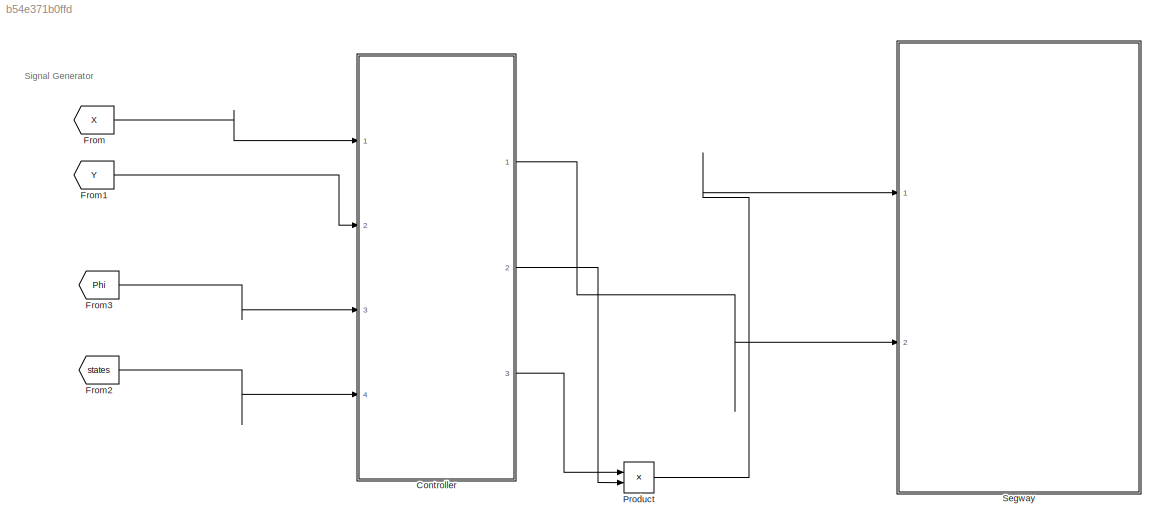
MODEL slx_b54e371b0ffd
KIND model
CONFIG AbsTol = auto
CONFIG EnableMultiTasking = on
CONFIG FixedStep = auto
CONFIG MaxStep = auto
CONFIG MinStep = auto
CONFIG RelTol = 1e-3
CONFIG SampleTimeConstraint = Unconstrained
CONFIG Solver = FixedStepAuto
CONFIG SolverName = FixedStepAuto
CONFIG StartTime = 0.0
CONFIG StopTime = 10.0
WORKSPACE source: MAT-file member
WORKSPACE MCOS: class17 (value not decoded)
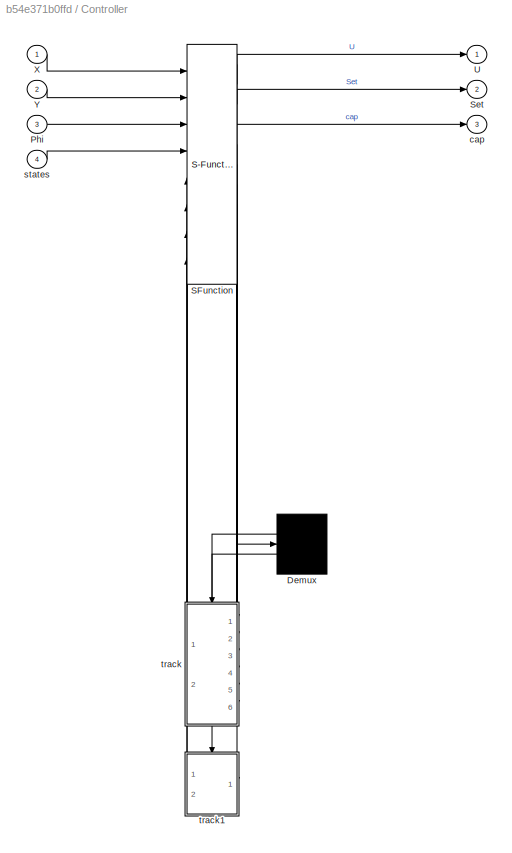
BLOCK [SubSystem] Controller
  ErrorFcn = Stateflow.Translate.translate
  PermitHierarchicalResolution = ExplicitOnly
  Ports = [4, 3]
  RequestExecContextInheritance = off
  SFBlockType = Chart
  TreatAsAtomicUnit = on
  Variant = off
BLOCK [Demux] Controller/ Demux 
  Outputs = 2
  Ports = [1, 2]
BLOCK [S-Function] Controller/ SFunction 
  EnableBusSupport = on
  FunctionName = sf_sfun
  Parameters = waypoints
  PortCounts = [8 11]
  Ports = [8, 11]
  SFcnIsStateOwnerBlock = off
  SFunctionDeploymentMode = off
  Tag = Stateflow S-Function Hybrid_automata 3
BLOCK [Inport] Controller/Phi
  IconDisplay = Port number
  Port = 3
BLOCK [Outport] Controller/Set
  IconDisplay = Port number
  Port = 2
BLOCK [Outport] Controller/U
  IconDisplay = Port number
BLOCK [Inport] Controller/X
  IconDisplay = Port number
BLOCK [Inport] Controller/Y
  IconDisplay = Port number
  Port = 2
BLOCK [Outport] Controller/cap
  IconDisplay = Port number
  Port = 3
BLOCK [Inport] Controller/states
  IconDisplay = Port number
  Port = 4
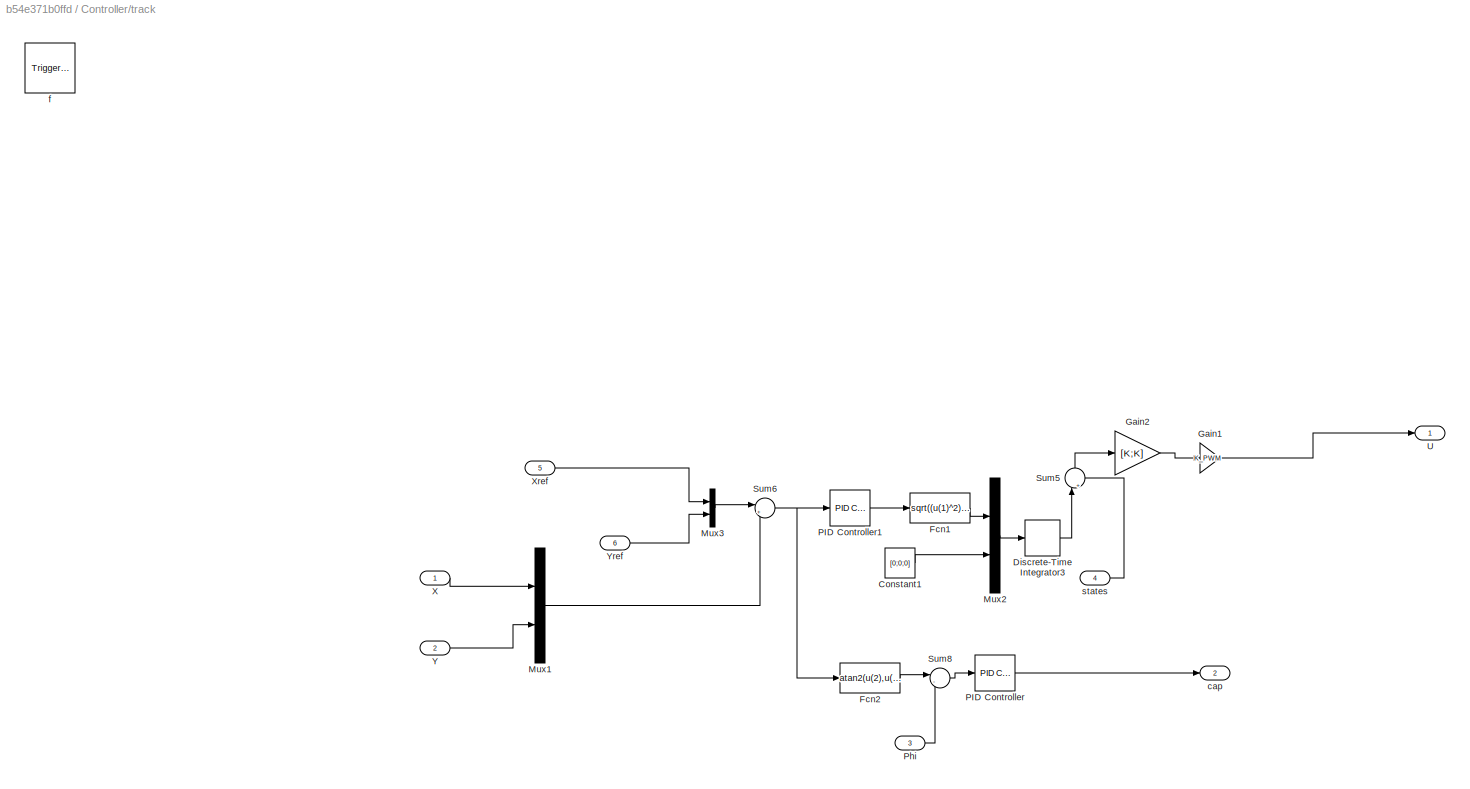
BLOCK [SubSystem] Controller/track
  Ports = [6, 2, 0, 1]
  PreDeleteFcn = Stateflow.SLINSF.SimulinkMan.removePreDeleteFcn
  RequestExecContextInheritance = off
  UndoDeleteFcn = Stateflow.SLINSF.SimulinkMan.restorePreDeleteFcn
  Variant = off
BLOCK [Constant] Controller/track/Constant1
  Value = [0;0;0]
BLOCK [DiscreteIntegrator] Controller/track/Discrete-Time Integrator3
  ICPrevOutput = DiscIntNeverNeededParam
  ICPrevScaledInput = DiscIntNeverNeededParam
  Ports = [1, 1]
  SampleTime = -1
BLOCK [Fcn] Controller/track/Fcn1
  Expr = sqrt((u(1)^2)+(u(2)^2))
BLOCK [Fcn] Controller/track/Fcn2
  Expr = atan2(u(2),u(1))
BLOCK [Gain] Controller/track/Gain1
  Gain = K_PWM
  OutDataTypeStr = Inherit: Inherit via internal rule
  ParamDataTypeStr = Inherit: Inherit via internal rule
  SaturateOnIntegerOverflow = off
BLOCK [Gain] Controller/track/Gain2
  Gain = [K;K]
  Multiplication = Matrix(K*u)
  OutDataTypeStr = Inherit: Inherit via internal rule
  ParamDataTypeStr = Inherit: Inherit via internal rule
  SaturateOnIntegerOverflow = off
BLOCK [Mux] Controller/track/Mux1
  DisplayOption = bar
  Inputs = 2
  Ports = [2, 1]
BLOCK [Mux] Controller/track/Mux2
  DisplayOption = bar
  Inputs = 2
  Ports = [2, 1]
BLOCK [Mux] Controller/track/Mux3
  DisplayOption = bar
  Inputs = 2
  Ports = [2, 1]
BLOCK [Reference] Controller/track/PID Controller  REF=simulink/Continuous/PID Controller
  Ports = [1, 1]
  SourceBlock = simulink/Continuous/PID Controller
  SourceProductBaseCode = SL
  SourceProductName = Simulink
  SourceType = PID 1dof
BLOCK [Reference] Controller/track/PID Controller1  REF=simulink/Continuous/PID Controller
  Ports = [1, 1]
  SourceBlock = simulink/Continuous/PID Controller
  SourceProductBaseCode = SL
  SourceProductName = Simulink
  SourceType = PID 1dof
BLOCK [Inport] Controller/track/Phi
  IconDisplay = Port number
  OutDataTypeStr = double
  Port = 3
  PortDimensions = 1
  SignalType = real
  VarSizeSig = No
BLOCK [Sum] Controller/track/Sum5
  IconShape = round
  InputSameDT = off
  Inputs = |+-
  OutDataTypeStr = Inherit: Inherit via internal rule
  Ports = [2, 1]
  SaturateOnIntegerOverflow = off
BLOCK [Sum] Controller/track/Sum6
  IconShape = round
  InputSameDT = off
  Inputs = |+-
  OutDataTypeStr = Inherit: Inherit via internal rule
  Ports = [2, 1]
  SaturateOnIntegerOverflow = off
BLOCK [Sum] Controller/track/Sum8
  IconShape = round
  InputSameDT = off
  Inputs = |-+
  OutDataTypeStr = Inherit: Inherit via internal rule
  Ports = [2, 1]
  SaturateOnIntegerOverflow = off
BLOCK [Outport] Controller/track/U
  IconDisplay = Port number
  InitialOutput = [0;0]
BLOCK [Inport] Controller/track/X
  IconDisplay = Port number
  OutDataTypeStr = double
  PortDimensions = 1
  SignalType = real
  VarSizeSig = No
BLOCK [Inport] Controller/track/Xref
  IconDisplay = Port number
  OutDataTypeStr = double
  Port = 5
  PortDimensions = 1
  SignalType = real
  VarSizeSig = No
BLOCK [Inport] Controller/track/Y
  IconDisplay = Port number
  OutDataTypeStr = double
  Port = 2
  PortDimensions = 1
  SignalType = real
  VarSizeSig = No
BLOCK [Inport] Controller/track/Yref
  IconDisplay = Port number
  OutDataTypeStr = double
  Port = 6
  PortDimensions = 1
  SignalType = real
  VarSizeSig = No
BLOCK [Outport] Controller/track/cap
  IconDisplay = Port number
  InitialOutput = [0]
  Port = 2
BLOCK [TriggerPort] Controller/track/f
  CopyFcn = Stateflow.SLINSF.SimulinkMan.removeBlockPreDeleteFcn
  Ports = []
  PreDeleteFcn = Stateflow.SLINSF.SimulinkMan.unsafePredeleteFcn
  StatesWhenEnabling = held
  TriggerType = function-call
  VariantControl = (inherit)
BLOCK [Inport] Controller/track/states
  IconDisplay = Port number
  OutDataTypeStr = double
  OutMax = [4]
  OutMin = [4]
  Port = 4
  PortDimensions = 4
  SignalType = real
  VarSizeSig = No
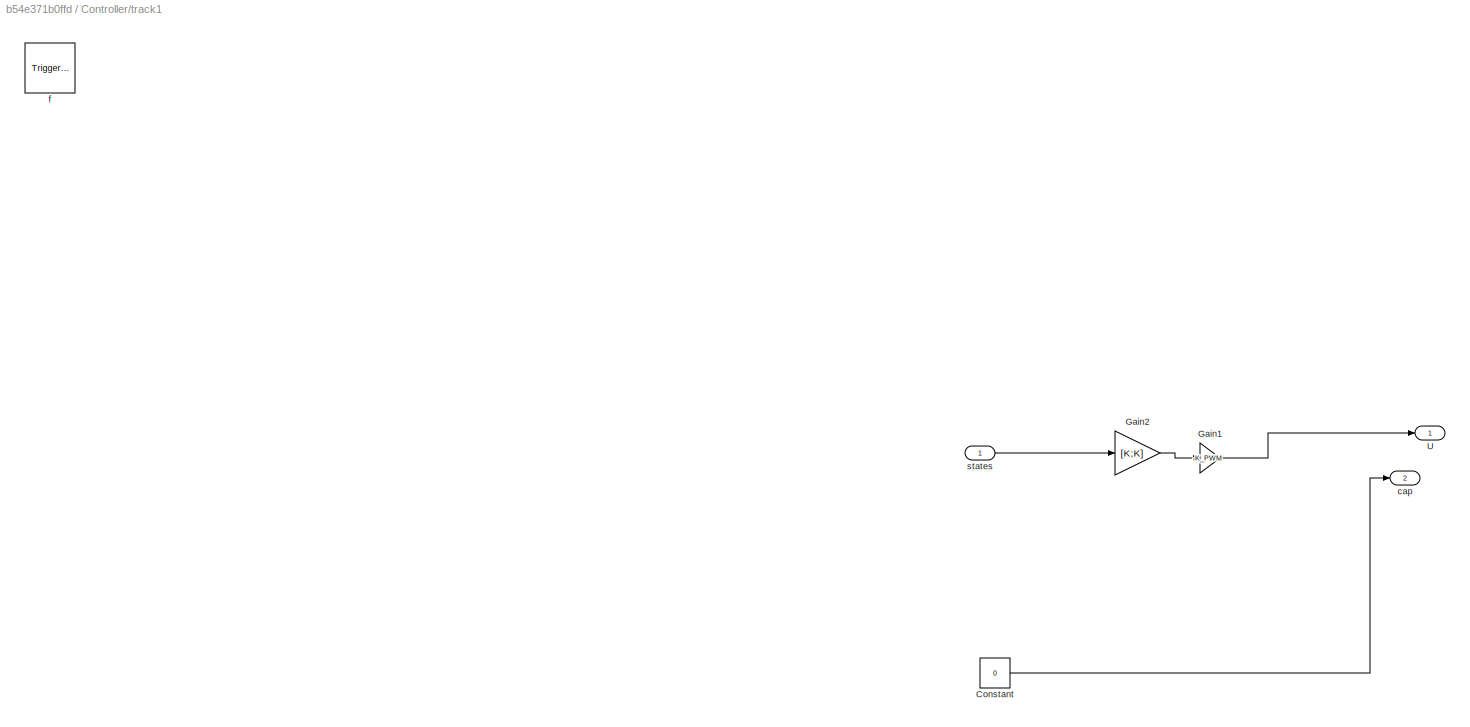
BLOCK [SubSystem] Controller/track1
  Ports = [1, 2, 0, 1]
  PreDeleteFcn = Stateflow.SLINSF.SimulinkMan.removePreDeleteFcn
  RequestExecContextInheritance = off
  UndoDeleteFcn = Stateflow.SLINSF.SimulinkMan.restorePreDeleteFcn
  Variant = off
BLOCK [Constant] Controller/track1/Constant
  Value = 0
BLOCK [Gain] Controller/track1/Gain1
  Gain = -K_PWM
  OutDataTypeStr = Inherit: Inherit via internal rule
  ParamDataTypeStr = Inherit: Inherit via internal rule
  SaturateOnIntegerOverflow = off
BLOCK [Gain] Controller/track1/Gain2
  Gain = [K;K]
  Multiplication = Matrix(K*u)
  OutDataTypeStr = Inherit: Inherit via internal rule
  ParamDataTypeStr = Inherit: Inherit via internal rule
  SaturateOnIntegerOverflow = off
BLOCK [Outport] Controller/track1/U
  IconDisplay = Port number
  InitialOutput = [0;0]
BLOCK [Outport] Controller/track1/cap
  IconDisplay = Port number
  InitialOutput = [0]
  Port = 2
BLOCK [TriggerPort] Controller/track1/f
  CopyFcn = Stateflow.SLINSF.SimulinkMan.removeBlockPreDeleteFcn
  Ports = []
  PreDeleteFcn = Stateflow.SLINSF.SimulinkMan.unsafePredeleteFcn
  StatesWhenEnabling = held
  TriggerType = function-call
  VariantControl = (inherit)
BLOCK [Inport] Controller/track1/states
  IconDisplay = Port number
  OutDataTypeStr = double
  OutMax = [4]
  OutMin = [4]
  PortDimensions = 4
  SignalType = real
  VarSizeSig = No
BLOCK [From] From
  GotoTag = X
  IconDisplay = Tag and signal name
  TagVisibility = global
BLOCK [From] From1
  GotoTag = Y
  TagVisibility = global
BLOCK [From] From2
  GotoTag = states
  IconDisplay = Tag and signal name
  TagVisibility = global
BLOCK [From] From3
  GotoTag = Phi
  TagVisibility = global
BLOCK [Product] Product
  InputSameDT = off
  OutDataTypeStr = Inherit: Inherit via internal rule
  Ports = [2, 1]
  RndMeth = Floor
  SaturateOnIntegerOverflow = off
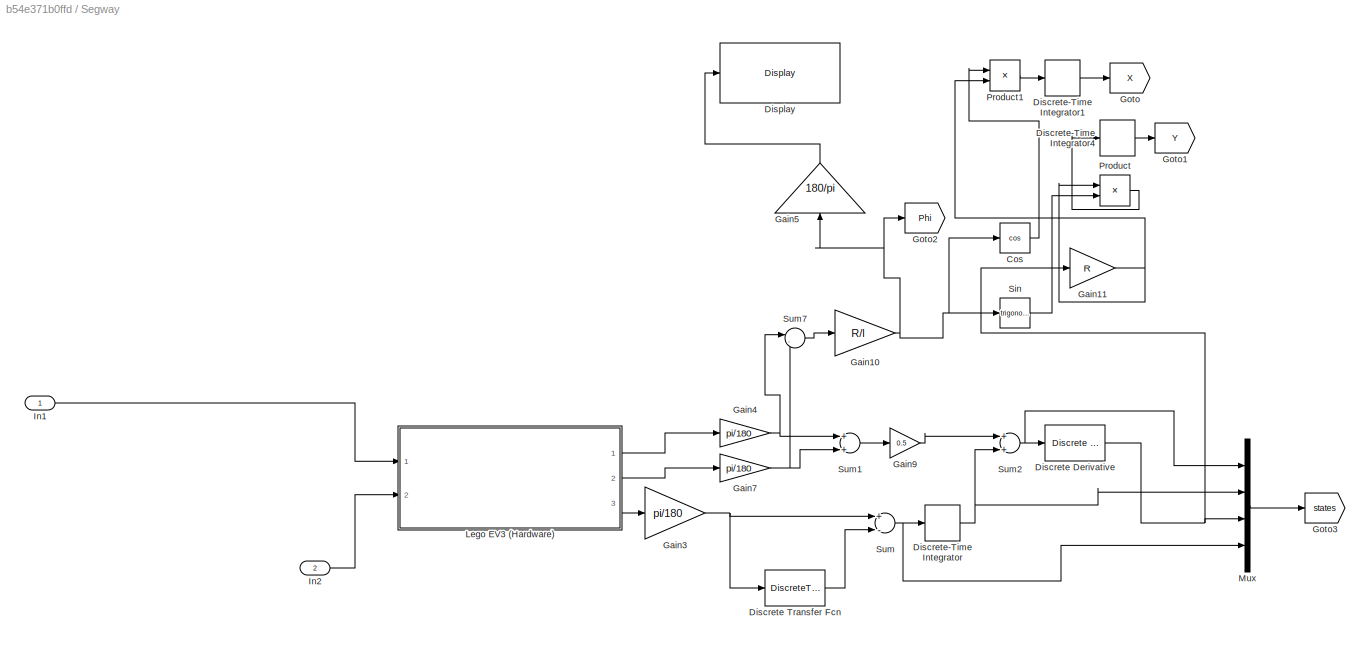
BLOCK [SubSystem] Segway 
  Ports = [2]
  RequestExecContextInheritance = off
  Variant = off
BLOCK [Trigonometry] Segway /Cos
  Operator = cos
  Ports = [1, 1]
BLOCK [Reference] Segway /Discrete Derivative  REF=simulink/Discrete/Discrete Derivative
  Ports = [1, 1]
  SourceBlock = simulink/Discrete/Discrete Derivative
  SourceProductBaseCode = SL
  SourceProductName = Simulink
  SourceType = Discrete Derivative
BLOCK [DiscreteTransferFcn] Segway /Discrete Transfer Fcn
  Denominator = [1 -0.999]
  InputPortMap = u0
  Numerator = [0.001 0]
  Ports = [1, 1]
  SampleTime = Ts
BLOCK [DiscreteIntegrator] Segway /Discrete-Time Integrator
  ICPrevOutput = DiscIntNeverNeededParam
  ICPrevScaledInput = DiscIntNeverNeededParam
  InitialConditionSetting = State (most efficient)
  Ports = [1, 1]
  SampleTime = Ts
BLOCK [DiscreteIntegrator] Segway /Discrete-Time Integrator1
  ICPrevOutput = DiscIntNeverNeededParam
  ICPrevScaledInput = DiscIntNeverNeededParam
  InitialConditionSetting = State (most efficient)
  Ports = [1, 1]
  SampleTime = Ts
BLOCK [DiscreteIntegrator] Segway /Discrete-Time Integrator4
  ICPrevOutput = DiscIntNeverNeededParam
  ICPrevScaledInput = DiscIntNeverNeededParam
  InitialConditionSetting = State (most efficient)
  Ports = [1, 1]
  SampleTime = Ts
BLOCK [Reference] Segway /Display  REF=legoev3lib/Display
  Ports = [1]
  SourceBlock = legoev3lib/Display
  SourceProductBaseCode = LEGOEV3
  SourceProductName = Simulink Support Package for LEGO MINDSTORMS EV3 Hardware
  SourceType = LEGO MINDSTORMS EV3 Display
BLOCK [Gain] Segway /Gain10
  Gain = R/l
  OutDataTypeStr = Inherit: Inherit via internal rule
  ParamDataTypeStr = Inherit: Inherit via internal rule
  SaturateOnIntegerOverflow = off
BLOCK [Gain] Segway /Gain11
  Gain = R
  OutDataTypeStr = Inherit: Inherit via internal rule
  ParamDataTypeStr = Inherit: Inherit via internal rule
  SaturateOnIntegerOverflow = off
BLOCK [Gain] Segway /Gain3
  Gain = pi/180
  OutDataTypeStr = Inherit: Inherit via internal rule
  ParamDataTypeStr = Inherit: Inherit via internal rule
  SaturateOnIntegerOverflow = off
BLOCK [Gain] Segway /Gain4
  Gain = pi/180
  OutDataTypeStr = Inherit: Inherit via internal rule
  ParamDataTypeStr = Inherit: Inherit via internal rule
  SaturateOnIntegerOverflow = off
BLOCK [Gain] Segway /Gain5
  Gain = 180/pi
  OutDataTypeStr = Inherit: Inherit via internal rule
  ParamDataTypeStr = Inherit: Inherit via internal rule
  SaturateOnIntegerOverflow = off
BLOCK [Gain] Segway /Gain7
  Gain = pi/180
  OutDataTypeStr = Inherit: Inherit via internal rule
  ParamDataTypeStr = Inherit: Inherit via internal rule
  SaturateOnIntegerOverflow = off
BLOCK [Gain] Segway /Gain9
  Gain = 0.5
  OutDataTypeStr = Inherit: Inherit via internal rule
  ParamDataTypeStr = Inherit: Inherit via internal rule
  SaturateOnIntegerOverflow = off
BLOCK [Goto] Segway /Goto
  GotoTag = X
  TagVisibility = global
BLOCK [Goto] Segway /Goto1
  GotoTag = Y
  TagVisibility = global
BLOCK [Goto] Segway /Goto2
  GotoTag = Phi
  TagVisibility = global
BLOCK [Goto] Segway /Goto3
  GotoTag = states
  IconDisplay = Tag and signal name
  TagVisibility = global
BLOCK [Inport] Segway /In1
  IconDisplay = Port number
BLOCK [Inport] Segway /In2
  IconDisplay = Port number
  Port = 2
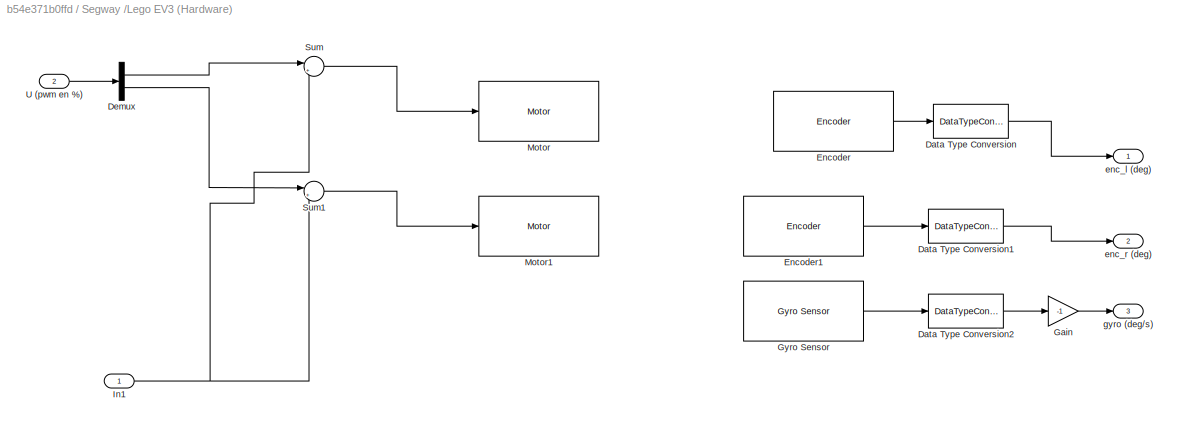
BLOCK [SubSystem] Segway /Lego EV3 (Hardware)
  Ports = [2, 3]
  RequestExecContextInheritance = off
  Variant = off
BLOCK [DataTypeConversion] Segway /Lego EV3 (Hardware)/Data Type Conversion
  OutDataTypeStr = double
  RndMeth = Floor
  SaturateOnIntegerOverflow = off
BLOCK [DataTypeConversion] Segway /Lego EV3 (Hardware)/Data Type Conversion1
  OutDataTypeStr = double
  RndMeth = Floor
  SaturateOnIntegerOverflow = off
BLOCK [DataTypeConversion] Segway /Lego EV3 (Hardware)/Data Type Conversion2
  OutDataTypeStr = double
  RndMeth = Floor
  SaturateOnIntegerOverflow = off
BLOCK [Demux] Segway /Lego EV3 (Hardware)/Demux
  DisplayOption = bar
  Outputs = 2
  Ports = [1, 2]
BLOCK [Reference] Segway /Lego EV3 (Hardware)/Encoder  REF=legoev3lib/Encoder
  Ports = [0, 1]
  SourceBlock = legoev3lib/Encoder
  SourceProductBaseCode = LEGOEV3
  SourceProductName = Simulink Support Package for LEGO MINDSTORMS EV3 Hardware
  SourceType = LEGO MINDSTORMS EV3 Encoder
BLOCK [Reference] Segway /Lego EV3 (Hardware)/Encoder1  REF=legoev3lib/Encoder
  Ports = [0, 1]
  SourceBlock = legoev3lib/Encoder
  SourceProductBaseCode = LEGOEV3
  SourceProductName = Simulink Support Package for LEGO MINDSTORMS EV3 Hardware
  SourceType = LEGO MINDSTORMS EV3 Encoder
BLOCK [Gain] Segway /Lego EV3 (Hardware)/Gain
  Gain = -1
  OutDataTypeStr = Inherit: Inherit via internal rule
  ParamDataTypeStr = Inherit: Inherit via internal rule
  SaturateOnIntegerOverflow = off
BLOCK [Reference] Segway /Lego EV3 (Hardware)/Gyro Sensor  REF=legoev3lib/Gyro Sensor
  Ports = [0, 1]
  SourceBlock = legoev3lib/Gyro Sensor
  SourceProductBaseCode = LEGOEV3
  SourceProductName = Simulink Support Package for LEGO MINDSTORMS EV3 Hardware
  SourceType = LEGO MINDSTORMS EV3 Gyro Sensor
BLOCK [Inport] Segway /Lego EV3 (Hardware)/In1
  IconDisplay = Port number
BLOCK [Reference] Segway /Lego EV3 (Hardware)/Motor  REF=legoev3lib/Motor
  Ports = [1]
  SourceBlock = legoev3lib/Motor
  SourceProductBaseCode = LEGOEV3
  SourceProductName = Simulink Support Package for LEGO MINDSTORMS EV3 Hardware
  SourceType = LEGO MINDSTORMS EV3 Motor
BLOCK [Reference] Segway /Lego EV3 (Hardware)/Motor1  REF=legoev3lib/Motor
  Ports = [1]
  SourceBlock = legoev3lib/Motor
  SourceProductBaseCode = LEGOEV3
  SourceProductName = Simulink Support Package for LEGO MINDSTORMS EV3 Hardware
  SourceType = LEGO MINDSTORMS EV3 Motor
BLOCK [Sum] Segway /Lego EV3 (Hardware)/Sum
  IconShape = round
  InputSameDT = off
  Inputs = |++
  OutDataTypeStr = Inherit: Inherit via internal rule
  Ports = [2, 1]
  SaturateOnIntegerOverflow = off
BLOCK [Sum] Segway /Lego EV3 (Hardware)/Sum1
  IconShape = round
  InputSameDT = off
  Inputs = |+-
  OutDataTypeStr = Inherit: Inherit via internal rule
  Ports = [2, 1]
  SaturateOnIntegerOverflow = off
BLOCK [Inport] Segway /Lego EV3 (Hardware)/U (pwm en %)
  IconDisplay = Port number
  Port = 2
BLOCK [Outport] Segway /Lego EV3 (Hardware)/enc_l (deg)
  IconDisplay = Port number
  VectorParamsAs1DForOutWhenUnconnected = on
BLOCK [Outport] Segway /Lego EV3 (Hardware)/enc_r (deg)
  IconDisplay = Port number
  Port = 2
  VectorParamsAs1DForOutWhenUnconnected = on
BLOCK [Outport] Segway /Lego EV3 (Hardware)/gyro (deg//s)
  IconDisplay = Port number
  Port = 3
  VectorParamsAs1DForOutWhenUnconnected = on
BLOCK [Mux] Segway /Mux
  DisplayOption = bar
  Ports = [4, 1]
BLOCK [Product] Segway /Product
  InputSameDT = off
  OutDataTypeStr = Inherit: Inherit via internal rule
  Ports = [2, 1]
  RndMeth = Floor
  SaturateOnIntegerOverflow = off
BLOCK [Product] Segway /Product1
  InputSameDT = off
  OutDataTypeStr = Inherit: Inherit via internal rule
  Ports = [2, 1]
  RndMeth = Floor
  SaturateOnIntegerOverflow = off
BLOCK [Trigonometry] Segway /Sin
  Ports = [1, 1]
BLOCK [Sum] Segway /Sum
  InputSameDT = off
  Inputs = +-
  OutDataTypeStr = Inherit: Inherit via internal rule
  Ports = [2, 1]
  SaturateOnIntegerOverflow = off
BLOCK [Sum] Segway /Sum1
  InputSameDT = off
  OutDataTypeStr = Inherit: Inherit via internal rule
  Ports = [2, 1]
  SaturateOnIntegerOverflow = off
BLOCK [Sum] Segway /Sum2
  InputSameDT = off
  OutDataTypeStr = Inherit: Inherit via internal rule
  Ports = [2, 1]
  SaturateOnIntegerOverflow = off
BLOCK [Sum] Segway /Sum7
  IconShape = round
  InputSameDT = off
  Inputs = |-+
  OutDataTypeStr = Inherit: Inherit via internal rule
  Ports = [2, 1]
  SaturateOnIntegerOverflow = off
ANNOTATION (root): Signal Generator
LINE Controller:1 -> Segway :2
LINE Controller:2 -> Product:2
LINE Controller:3 -> Product:1
LINE From1:1 -> Controller:2
LINE From2:1 -> Controller:4
LINE From3:1 -> Controller:3
LINE From:1 -> Controller:1
LINE Product:1 -> Segway :1
LINE Segway /Cos:1 -> Segway /Product1:1
NET Segway /Discrete Derivative:1 -> Segway /Gain11:1, Segway /Mux:3
LINE Segway /Discrete Transfer Fcn:1 -> Segway /Sum:2
LINE Segway /Discrete-Time Integrator1:1 -> Segway /Goto:1
LINE Segway /Discrete-Time Integrator4:1 -> Segway /Goto1:1
NET Segway /Discrete-Time Integrator:1 -> Segway /Mux:2, Segway /Sum2:2
NET Segway /Gain10:1 -> Segway /Cos:1, Segway /Gain5:1, Segway /Goto2:1, Segway /Sin:1
NET Segway /Gain11:1 -> Segway /Product1:2, Segway /Product:1
NET Segway /Gain3:1 -> Segway /Discrete Transfer Fcn:1, Segway /Sum:1
NET Segway /Gain4:1 -> Segway /Sum1:1, Segway /Sum7:1
LINE Segway /Gain5:1 -> Segway /Display:1
NET Segway /Gain7:1 -> Segway /Sum1:2, Segway /Sum7:2
LINE Segway /Gain9:1 -> Segway /Sum2:1
LINE Segway /In1:1 -> Segway /Lego EV3 (Hardware):1
LINE Segway /In2:1 -> Segway /Lego EV3 (Hardware):2
LINE Segway /Lego EV3 (Hardware)/Data Type Conversion1:1 -> Segway /Lego EV3 (Hardware)/enc_r (deg):1
LINE Segway /Lego EV3 (Hardware)/Data Type Conversion2:1 -> Segway /Lego EV3 (Hardware)/Gain:1
LINE Segway /Lego EV3 (Hardware)/Data Type Conversion:1 -> Segway /Lego EV3 (Hardware)/enc_l (deg):1
LINE Segway /Lego EV3 (Hardware)/Demux:1 -> Segway /Lego EV3 (Hardware)/Sum:1
LINE Segway /Lego EV3 (Hardware)/Demux:2 -> Segway /Lego EV3 (Hardware)/Sum1:1
LINE Segway /Lego EV3 (Hardware)/Encoder1:1 -> Segway /Lego EV3 (Hardware)/Data Type Conversion1:1
LINE Segway /Lego EV3 (Hardware)/Encoder:1 -> Segway /Lego EV3 (Hardware)/Data Type Conversion:1
LINE Segway /Lego EV3 (Hardware)/Gain:1 -> Segway /Lego EV3 (Hardware)/gyro (deg//s):1
LINE Segway /Lego EV3 (Hardware)/Gyro Sensor:1 -> Segway /Lego EV3 (Hardware)/Data Type Conversion2:1
NET Segway /Lego EV3 (Hardware)/In1:1 -> Segway /Lego EV3 (Hardware)/Sum1:2, Segway /Lego EV3 (Hardware)/Sum:2
LINE Segway /Lego EV3 (Hardware)/Sum1:1 -> Segway /Lego EV3 (Hardware)/Motor1:1
LINE Segway /Lego EV3 (Hardware)/Sum:1 -> Segway /Lego EV3 (Hardware)/Motor:1
LINE Segway /Lego EV3 (Hardware)/U (pwm en %):1 -> Segway /Lego EV3 (Hardware)/Demux:1
LINE Segway /Lego EV3 (Hardware):1 -> Segway /Gain4:1
LINE Segway /Lego EV3 (Hardware):2 -> Segway /Gain7:1
LINE Segway /Lego EV3 (Hardware):3 -> Segway /Gain3:1
LINE Segway /Mux:1 -> Segway /Goto3:1
LINE Segway /Product1:1 -> Segway /Discrete-Time Integrator1:1
LINE Segway /Product:1 -> Segway /Discrete-Time Integrator4:1
LINE Segway /Sin:1 -> Segway /Product:2
LINE Segway /Sum1:1 -> Segway /Gain9:1
NET Segway /Sum2:1 -> Segway /Discrete Derivative:1, Segway /Mux:1
LINE Segway /Sum7:1 -> Segway /Gain10:1
NET Segway /Sum:1 -> Segway /Discrete-Time Integrator:1, Segway /Mux:4
note: NET lines group one-source signal fan-out (src -> all destinations, sorted); 1:1 wires keep LINE
CHART Controller states=6 transitions=6
  STATE_LABEL 'GoToGoal\n\nentry:\n i=1;\n P=waypoints(:,i);\n Xref=P(1);\n Yref=P(2);\n %Set=0;\n Set=1;\nduring:\n% [U,cap]=track1(states);\n[U,cap]= track(X,Y,Phi,states,Xref,Yref);\nV=sqrt(((Xref-X)^2)+((Yref-Y)^2));\n'
  STATE_LABEL 'Stop\n\n\nduring:\nSet=0;\n[U,cap]=track1(states);\n'
  STATE_LABEL 'NextGoal\n\nentry:\nP=waypoints(:,i)\nXref=P(1);\nYref=P(2);\nduring:\nSet=1;\n[U,cap]= track(X,Y,Phi,states,Xref,Yref);\nV=sqrt(((Xref-X)^2)+((Yref-Y)^2));\nexit:\ni=i+1;\n'
  STATE_LABEL 'Track\n\nduring:\n[U,cap]= track(X,Y,Phi,states,Xref,Yref),Set=1;\nV=sqrt(((Xref-X)^2)+((Yref-Y)^2));\nexit:\ni=i+1;'
  STATE_LABEL '[U,cap] = track1(states)'
  STATE_LABEL '[U,cap] = track(X,Y,Phi,states,Xref,Yref)'
